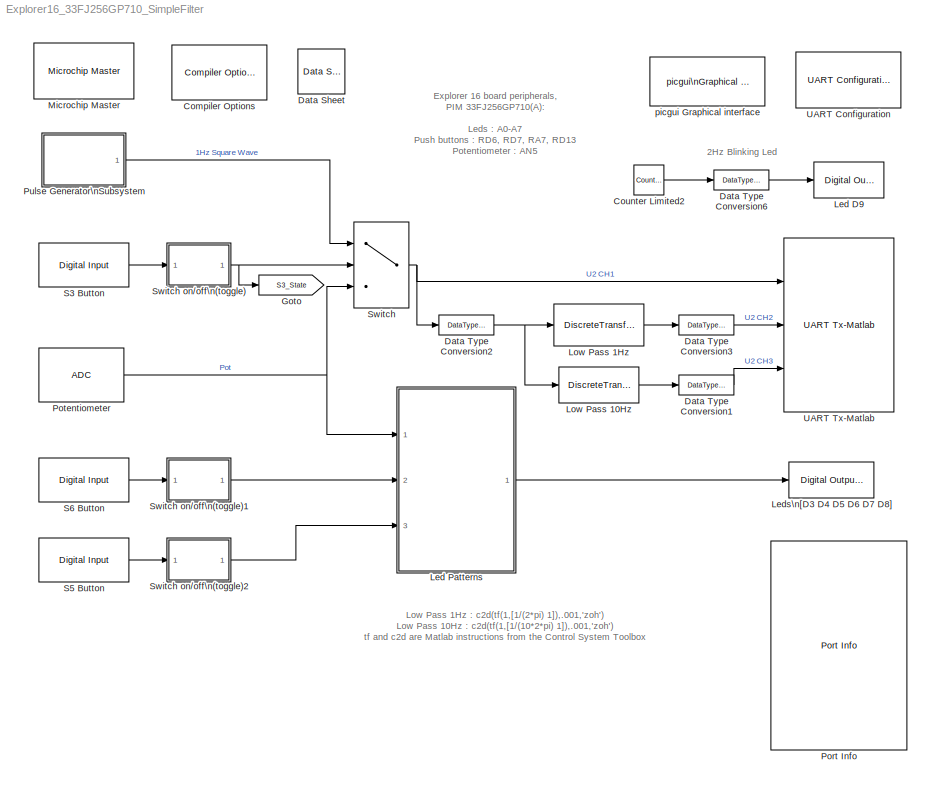
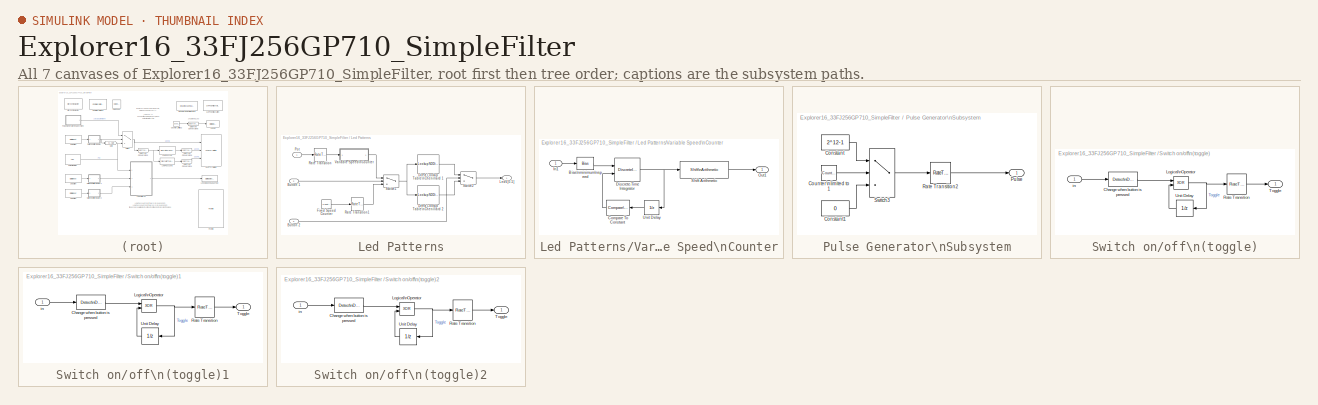
[diagram: thumbnail index - all 7 canvases of the model, root first then tree order]
MODEL Explorer16_33FJ256GP710_SimpleFilter
KIND model
BLOCK [Reference] Compiler Options  REF=MCHP_Blockset/System Configuration/Compiler Options
  AssemblyListing = off
  COMP_LIST = Dynamic Options
  COMP_LIST_TXT = xc16 - v1.26
  DEBUG_INFO = off
  HEAP_SIZE = 0
  LATEST_CMPLR = on
  MCHP_MASTERLINK = Explorer16_33FJ256GP710_SimpleFilter/Microchip Master
  MCHP_MULTITHREAD_COMPILATION = on
  MCODE = is less than 32768 (faster)
  MCONST = in data memory
  MDATA = Use only memory below address 8192 (faster)
  MPLAB_LINKLIB = default
  MPLAB_LINKLIB1 = default
  MSCALAR = Use only memory below address 8192 (faster)
  OMF = elf
  OMIT_FRAME_POINTER = on
  OPTIMIZATION_LEVEL = 3
  PROCEDURAL_ABSTRACTION = on
  Ports = []
  Priority = 1
  ProduceHexOutput = on
  SID = 12
  SourceBlock = MCHP_Blockset/System Configuration/Compiler Options
  UNROLL_LOOPS = on
  USE_64BIT_DOUBLE = off
BLOCK [Reference] Counter Limited2  REF=simulink/Sources/Counter\nLimited
  FunctionWithSeparateData = off
  Ports = [0, 1]
  RTWMemSecDataConstants = Inherit from model
  RTWMemSecDataInternal = Inherit from model
  RTWMemSecDataParameters = Inherit from model
  RTWMemSecFuncExecute = Inherit from model
  RTWMemSecFuncInitTerm = Inherit from model
  SID = 37
  ShowPortLabels = FromPortIcon
  SourceBlock = simulink/Sources/Counter\nLimited
  SourceType = Counter Limited
  SystemSampleTime = -1
  tsamp = .25
  uplimit = 1
BLOCK [Reference] Data Sheet  REF=MCHP_Blockset/System Info/Data Sheet
  AttributesFormatString = %<cpy_MCHP_Id>
  DOC_FileLastCheckTime = [2013              1             31             16              0          0.865]
  DOC_FilePath = <userpath><path>
  DOC_MCHP_Id = 33FJ256GP710
  DOC_Type = datasheet
  MCHP_MASTERLINK = Explorer16_33FJ256GP710_SimpleFilter/Microchip Master
  Ports = []
  SID = 33
  SourceBlock = MCHP_Blockset/System Info/Data Sheet
  cpy_MCHP_Id = 33FJ256GP710A
BLOCK [DataTypeConversion] Data Type Conversion1
  OutDataTypeMode = uint16
  OutDataTypeStr = uint16
  RndMeth = Floor
  SID = 11
  SaturateOnIntegerOverflow = off
BLOCK [DataTypeConversion] Data Type Conversion2
  RndMeth = Floor
  SID = 9
  SaturateOnIntegerOverflow = off
BLOCK [DataTypeConversion] Data Type Conversion3
  OutDataTypeMode = uint16
  OutDataTypeStr = uint16
  RndMeth = Floor
  SID = 10
  SaturateOnIntegerOverflow = off
BLOCK [DataTypeConversion] Data Type Conversion6
  OutDataTypeMode = boolean
  OutDataTypeStr = boolean
  RndMeth = Floor
  SID = 38
  SaturateOnIntegerOverflow = off
BLOCK [Goto] Goto
  GotoTag = S3_State
  SID = 132
  TagVisibility = local
BLOCK [Reference] Led D9  REF=MCHP_Blockset/Digital IO/Digital Output
  FunctionWithSeparateData = off
  MCHP_MASTERLINK = Explorer16_33FJ256GP710_SimpleFilter/Microchip Master
  ORDERING = None
  PACK = off
  PIN = 6
  PORT = Dynamic Options
  PORT_TXT = A   [ 0  1  2  3  4  5  6  7  9  10  12  13  14  15 ]
  Ports = [1]
  READPREVIOUS = off
  RTWMemSecDataConstants = Inherit from model
  RTWMemSecDataInternal = Inherit from model
  RTWMemSecDataParameters = Inherit from model
  RTWMemSecFuncExecute = Inherit from model
  RTWMemSecFuncInitTerm = Inherit from model
  SID = 52
  SIMULTANEOUS = off
  SampleTime = -1
  ShowPortLabels = FromPortIcon
  SourceBlock = MCHP_Blockset/Digital IO/Digital Output
  SystemSampleTime = -1
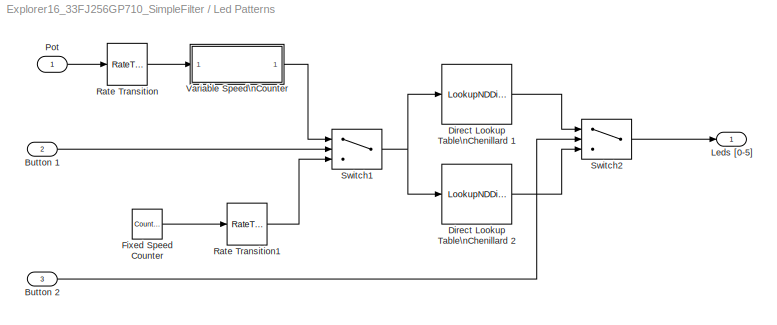
BLOCK [SubSystem] Led Patterns
  FunctionWithSeparateData = off
  MaskHideContents = off
  MinAlgLoopOccurrences = off
  Opaque = off
  Ports = [3, 1]
  PropExecContextOutsideSubsystem = off
  RTWSystemCode = Auto
  RequestExecContextInheritance = off
  SID = 126
BLOCK [Inport] Led Patterns/Button 1
  IconDisplay = Port number
  Port = 2
  SID = 128
BLOCK [Inport] Led Patterns/Button 2
  IconDisplay = Port number
  Port = 3
  SID = 129
BLOCK [LookupNDDirect] Led Patterns/Direct Lookup Table\nChenillard 1 
  NumberOfTableDimensions = 1
  Ports = [1, 1]
  SID = 54
  Table = [1 3 6 12 24 48 32 48 24 12 6 3 ]
  TableDataTypeStr = uint16
BLOCK [LookupNDDirect] Led Patterns/Direct Lookup Table\nChenillard 2
  NumberOfTableDimensions = 1
  Ports = [1, 1]
  SID = 82
  Table = [33  18 12 12 18 33 33  18 12 12 18 33]
  TableDataTypeStr = uint16
BLOCK [Reference] Led Patterns/Fixed Speed Counter  REF=simulink/Sources/Counter\nLimited
  FunctionWithSeparateData = off
  Ports = [0, 1]
  RTWMemSecDataConstants = Inherit from model
  RTWMemSecDataInternal = Inherit from model
  RTWMemSecDataParameters = Inherit from model
  RTWMemSecFuncExecute = Inherit from model
  RTWMemSecFuncInitTerm = Inherit from model
  SID = 35
  ShowPortLabels = FromPortIcon
  SourceBlock = simulink/Sources/Counter\nLimited
  SourceType = Counter Limited
  SystemSampleTime = -1
  tsamp = .1
  uplimit = 11
BLOCK [Outport] Led Patterns/Leds [0-5]
  IconDisplay = Port number
  SID = 130
BLOCK [Inport] Led Patterns/Pot
  IconDisplay = Port number
  SID = 127
BLOCK [RateTransition] Led Patterns/Rate Transition
  Deterministic = off
  Integrity = off
  OutPortSampleTime = .01
  SID = 67
BLOCK [RateTransition] Led Patterns/Rate Transition1
  Deterministic = off
  Integrity = off
  SID = 83
BLOCK [Switch] Led Patterns/Switch1
  Criteria = u2 ~= 0
  InputSameDT = off
  SID = 72
  SaturateOnIntegerOverflow = off
BLOCK [Switch] Led Patterns/Switch2
  Criteria = u2 ~= 0
  InputSameDT = off
  SID = 81
  SaturateOnIntegerOverflow = off
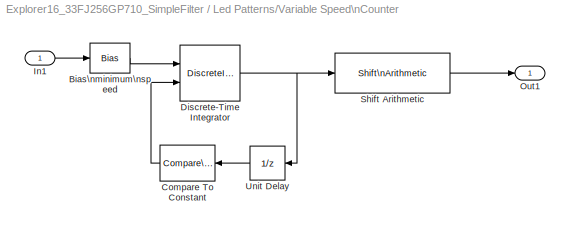
BLOCK [SubSystem] Led Patterns/Variable Speed\nCounter
  FunctionWithSeparateData = off
  MaskHideContents = off
  MinAlgLoopOccurrences = off
  Opaque = off
  Ports = [1, 1]
  PropExecContextOutsideSubsystem = off
  RTWSystemCode = Auto
  RequestExecContextInheritance = off
  SID = 69
BLOCK [Bias] Led Patterns/Variable Speed\nCounter/Bias\nminimum\nspeed
  Bias = 10
  SID = 68
  SaturateOnIntegerOverflow = off
BLOCK [Reference] Led Patterns/Variable Speed\nCounter/Compare To Constant  REF=simulink/Logic and Bit\nOperations/Compare\nTo Constant
  FunctionWithSeparateData = off
  LogicOutDataTypeMode = uint8
  Ports = [1, 1]
  RTWMemSecDataConstants = Inherit from model
  RTWMemSecDataInternal = Inherit from model
  RTWMemSecDataParameters = Inherit from model
  RTWMemSecFuncExecute = Inherit from model
  RTWMemSecFuncInitTerm = Inherit from model
  SID = 64
  ShowPortLabels = FromPortIcon
  SourceBlock = simulink/Logic and Bit\nOperations/Compare\nTo Constant
  SourceType = Compare To Constant
  SystemSampleTime = -1
  ZeroCross = on
  const = 12*2^12-1
  relop = >=
BLOCK [DiscreteIntegrator] Led Patterns/Variable Speed\nCounter/Discrete-Time Integrator
  ExternalReset = level
  ICPrevOutput = DiscIntNeverNeededParam
  ICPrevScaledInput = DiscIntNeverNeededParam
  InitialConditionSource = internal
  IntegratorMethod = Accumulation: Forward Euler
  OutDataTypeMode = uint16
  OutDataTypeStr = uint16
  Ports = [2, 1]
  SID = 63
  SampleTime = -1
  UpperSaturationLimit = 11*2^8
  gainval = 1
BLOCK [Inport] Led Patterns/Variable Speed\nCounter/In1
  IconDisplay = Port number
  SID = 70
BLOCK [Outport] Led Patterns/Variable Speed\nCounter/Out1
  IconDisplay = Port number
  SID = 71
BLOCK [Reference] Led Patterns/Variable Speed\nCounter/Shift Arithmetic  REF=simulink/Logic and Bit\nOperations/Shift\nArithmetic
  FunctionWithSeparateData = off
  Ports = [1, 1]
  RTWMemSecDataConstants = Inherit from model
  RTWMemSecDataInternal = Inherit from model
  RTWMemSecDataParameters = Inherit from model
  RTWMemSecFuncExecute = Inherit from model
  RTWMemSecFuncInitTerm = Inherit from model
  SID = 156
  ShowPortLabels = FromPortIcon
  SourceBlock = simulink/Logic and Bit\nOperations/Shift\nArithmetic
  SourceType = Shift Arithmetic
  SystemSampleTime = -1
  nBinPtShiftRight = 0
  nBitShiftRight = 12
BLOCK [UnitDelay] Led Patterns/Variable Speed\nCounter/Unit Delay
  SID = 66
  SampleTime = -1
BLOCK [Reference] Leds\n[D3 D4 D5 D6 D7 D8]  REF=MCHP_Blockset/Digital IO/Digital Output\nWrite
  MCHP_MASTERLINK = Explorer16_33FJ256GP710_SimpleFilter/Microchip Master
  MCHP_PORT = {Digital Out}{DOU}1:1:A0;{Digital Out}{DOU}1:1:A1;{Digital Out}{DOU}1:1:A2;{Digital Out}{DOU}1:1:A3;{Digital Out}{DOU}1:1:A4;{Digital Out}{DOU}1:1:A5;
  ORDERING = None
  PACK = on
  PIN = [0:5]
  PORT = Dynamic Options
  PORT_TXT = A   [ 0  1  2  3  4  5  6  7  9  10  12  13  14  15 ]
  Ports = [1]
  SID = 152
  SIMULTANEOUS = off
  SampleTime = -1
  SourceBlock = MCHP_Blockset/Digital IO/Digital Output\nWrite
  SourceType = Output driver for Digital Output Pins
BLOCK [DiscreteTransferFcn] Low Pass 10Hz
  Denominator = [1 -0.9391]
  Numerator = [0 0.0609]
  Ports = [1, 1]
  SID = 7
  SampleTime = -1
BLOCK [DiscreteTransferFcn] Low Pass 1Hz
  Denominator = [1 -.9937]
  Numerator = [0 0.006263]
  Ports = [1, 1]
  SID = 6
  SampleTime = -1
BLOCK [Reference] Microchip Master  REF=MCHP_Blockset/System Configuration/Microchip Master
  ACTIV_PLL = on
  ACTIV_PLL_spd = on
  AIVTDIS = Disable Alternate Vector Table
  ALTADREF = AVREF+/AVREF- are mapped to RA9/RA10
  ALTCMPI = C1INC is on RB13; C2INC is on RB9 and C3INC is on RA0
  ALTCVREF = CVREF+/CVREF- are mapped to RA9/RA10
  ALTI2C = I2C mapped to SDA1/SCL1 pins
  ALTI2C1 = I2C1 mapped to SDA1/SCL1 pins
  ALTI2C2 = I2C2 mapped to SDA2/SCL2 pins
  ALTPMP = EPMP pins are in default location mode
  ALTQIO = QEA1; QEB1; INDX1 are selected as inputs to QEI1
  ALTRB6 = Append the RP6/ASCL1/PMPD6 functions of RB6 to RA1 pin functions
  ALTSS1 = SS1A is selected as the I/O pin for SPI1
  ALTVREF = Voltage reference input; ADC =RA9/RA10 Comparator =RA9;RA10
  APL = Aux Flash Code protect is disabled
  APLK = Aux Flash Write Protection or Code Protection is Enabled
  ATMOD8 = Not used
  AWRP = Aux Flash may be written
  BACKBUG = Not used
  BKBUG = Device resets into Operational mode
  BODENV = 2.7V
  BOOTISA = Boot code and Exception code is MIPS32
  BOREN = Disable
  BOREN0 = Enabled
  BOREN1 = BOR Enabled [When BOREN=1]
  BORV = Brown-out Reset set at 2.0V
  BSEN = No Boot Segment
  BSLIM = Not used
  BSS = No boot program Flash segment
  BSS2 = No Boot Segment
  BTMODE = Device is in Single Boot (legacy) mode
  BTSWP = Not used
  BUSYFLAG = Dynamic Options
  BUSYFLAG_TXT = None
  BWP = Protection Disabled
  BWRP = Boot Segment may be written
  CMPPOL0 = Hysteresis is applied to falling edge
  CMPPOL1 = Hysteresis is applied to falling edge
  COE = Reset Into Operational Mode
  CP = Protection Disabled
  CSEQ = Not used
  CSS = No Protection (other than CWRP)
  CTXT1 = Not Assigned
  CTXT2 = Not Assigned
  CWRP = Configuration Segment may be written
  DBCC = Not used
  DBGPER = Allow CPU access to all permission regions
  DEBUG = Debugger is disabled
  DFMCY = Not used
  DISUVREG = Regulator is disabled
  DMTCNT = 2^31 (2147483648)
  DMTEN = Dead Man Timer is Enabled and cannot be disabled by software
  DMTINTV = Window/Interval value is 127/128 counter value
  DMTIVT = Not used
  DSBOREN = Deep Sleep BOR enabled in Deep Sleep
  DSLPBOR = Deep Sleep BOR enabled in Deep Sleep
  DSSWEN = Deep Sleep is controlled by the register bit DSEN
  DSWDTEN = DSWDT enabled
  DSWDTOSC = DSWDT uses Low Power RC Oscillator (LPRC)
  DSWDTPS = 1:2;147;483;648 (25.7 Days)
  EBS = No Boot EEPROM
  EJTAGBEN = Normal EJTAG functionality
  ESS = No Segment Data EEPROM
  EXTDDRSIZE = External DDR2 Size is 128 MB
  FCANIO = Default CAN I/O
  FCKSM = Clock switching is enabled; Fail-Safe Clock Monitor is disabled
  FCKSMEN = Sw Disabled; Mon Disabled
  FDMTEN = Deadman Timer is disabled
  FECCCON = ECC and Dynamic ECC are disabled (ECCCON bits are writable)
  FETHIO = Default Ethernet I/O
  FMIIEN = MII Enabled
  FNOSC = Primary oscillator (XT; HS; EC)
  FOS = Primary Oscillator
  FOSFPR = HS3 w/PLL 16x
  FPBDIV = Pb_Clk is Sys_Clk/8
  FPLLICLK = FRC is input to the System PLL
  FPLLIDIV = 12x Divider
  FPLLMUL = 24x Multiplier
  FPLLMULT = PLL Multiply by 128
  FPLLODIV = PLL Divide by 256
  FPLLRNG = 34-68 MHz Input
  FPR = ECIO w/ PLL 16x
  FPWRT = 128ms
  FRANGE = High Range
  FSLEEP = Flash is powered down when the device is in Sleep mode
  FSOSCEN = Enabled
  FSRSSEL = SRS Priority 7
  FUSBIDIO = Controlled by the USB Module
  FVBUSONIO = Controlled by USB Module
  FWDTEN = Disable
  FWDTWINSZ = Window size is 25%
  FWPSA = WDT prescaler ratio of 1:128
  FWPSA0 = 1:128
  FWPSB = 1:16
  GCP = General Segment Code protect is disabled
  GSS = User program memory is not code-protected
  GSS0 = No protection
  GSSK = General Segment Write Protection or Code Protection is Enabled
  GWRP = General Segment may be written
  HPOL = PWM module high side output pins have active-high output polarity
  HYST0 = 45 mV Hysteresis
  HYST1 = 45 mV Hysteresis
  I2C1SEL = Use Default SCL1/SDA1 Pins For I2C1
  I2C2SEL = I2C2 is multiplexed to SDA2/RA3 and SCL2/RA2
  ICESEL = Communicate on PGEC1/PGED1
  ICS = Communicate on PGEC1 and PGED1
  IESO = Start up with FRC; then switch
  IOL1WAY = Allow Only One Re-configuration
  JTAGEN = Disable
  LPCFG = Disabled - regardless of RETEN
  LPOL = PWM module low side output pins have active-high output polarity
  LPRCSEL = High Power; High Accuracy Mode
  LVRCFG = Low Voltage regulator is not available
  MCHPVAR = MCHP.fcy.periph=MCHP_Fun.Hex2num('[417343A400000001]');MCHP.fcy.MIPS=MCHP_Fun.Hex2num('[417343A400000001]');MCHP.PowerSave=0;MCHP.TimeStepFactor=MCHP_Fun.Hex2num('[3FF0000000000002]');MCHP.TimeStep_Timer=3;MCHP.NTIMERS=9;MCHP.id.name='33FJ256GP710A';MCHP.id.N=reshape([33 256 710],1,3);MCHP.id.L=reshape({ 'FJ','GP','A'},1,3);MCHP.id.Arch=3;MCHP.periph.PPS.reg_RPINRx=reshape(MCHP_Fun.Hex2num('[]'),0...<+5074ch>
  MCHP_CRC = 4296003
  MCHP_PLLRegisters = [67     99  16385     -1]
  MCHP_TIMER_REQUEST = {Time Step}{TS}0:2:3:1:[3  5]:20200;
  MCHP_TIMER_RESULT = [3 20198.999999999993 ]
  MCLRE = RA5 input pin disabled;MCLR pin enabled
  MIPS = 20.200000000000003 * 1e6
  MIPS_DESIRED = 20.2e6
  MIPS_DESIRED_spd = 20.2e6
  ON = Not used
  OSCILLATOR_SELECT = Crystal / Ceramic resonator
  OSCILLATOR_SELECT_spd = Crystal / Ceramic resonator
  OSCIOFCN = OSCO/CLKO/RA3 functions as CLKO (FOSC/2)
  OSCIOFNC = OSC2 pin has digital I/O function
  PGL1WAY = Allow only one reconfiguration
  PICREF = 33FJ256GP710A
  PLL96MHZ = 96 MHz PLL Startup is enabled automatically on start-up
  PLLDIV = PLL is disabled
  PLLKEN = Clock switch to PLL source will wait until the PLL lock signal is valid.
  PLLSS = PLL is fed by the Primary oscillator
  PLL_96MHZ = Enabled
  PMDL1WAY = Allow only one reconfiguration
  POSCBOOST = Boost the kick start of the oscillator
  POSCFREQ = Primary oscillator/external clock input frequency greater than 8MHz
  POSCGAIN = 2x gain setting
  POSCMD = XT Oscillator Mode
  POSCMOD = Primary Oscillator Disabled
  POWERSAVE = off
  PWMLOCK = PWM registers may be written without key sequence
  PWMPIN = PWM module pins controlled by PORT register at device Reset
  PWP = Disable
  PWRTEN = PWRT enabled
  Ports = []
  Priority = 1
  QUARTZ = 8e6
  QUARTZ_spd = 8e6
  RBS = No Boot RAM
  RES = Not used
  RES1 = Not used
  RES2 = Not used
  RESERVED1 = Not used
  RETCFG = Retention regulator is not available
  RSS = No Secure RAM
  RSTPRI = Device will obtain reset instruction from Primary flash
  RTCBAT = RTC operation is continued through VBAT
  RTCOSC = RTCC uses Secondary Oscillator (SOSC)
  SEQNUM = Not used
  SID = 1
  SMCLR = MCLR pin generates a normal system Reset
  SOSCBOOST = Boost the kick start of the oscillator
  SOSCGAIN = 2x gain setting
  SOSCSEL = Secondary oscillator configured for high-power operation
  SOSCSRC = Analog Mode for use with crystal
  SSS = No Secure Segment
  SWRP = Secure segment may be written
  SourceBlock = MCHP_Blockset/System Configuration/Microchip Master
  TEMP = Not used
  TIMESTEP_REF = Timer + ADC  ( 0.001s )
  TRCEN = Trace features in the CPU are enabled
  TSEQ = Not used
  UPLLEN = Disabled and bypassed
  UPLLFSEL = USB PLL input is 24 MHz
  UPLLIDIV = 12x Divider
  USERID = Not used
  VBTBOR = VBAT BOR enabled
  WDT = Disable
  WDTCLK = WDT uses LPRC
  WDTCMX = WDT clock source is determined by the WDTCLK Configuration bits
  WDTEN = Disable
  WDTPOST = 1:32768
  WDTPRE = 1:128
  WDTPS = 1:32768
  WDTSPGM = WDT stops during Flash programming
  WDTWIN = WDT Window is 25% of WDT period
  WINDIS = Watchdog Timer in Non-Window mode
  WPCFG = Disable
  WPDIS = Disable
  WPEND = Write Protect from WPFP to the last page of memory
  WPFP = Page 127 (0x1FC00)
  WUTSEL = Default regulator start-up time used
  WWDTEN = Non-Window mode
  nSEQNUM = Not used
BLOCK [Reference] Port Info  REF=MCHP_Blockset/System Info/Port Info
  MCHP_MASTERLINK = Explorer16_33FJ256GP710_SimpleFilter/Microchip Master
  Ports = []
  SID = 148
  SourceBlock = MCHP_Blockset/System Info/Port Info
BLOCK [Reference] Potentiometer  REF=MCHP_Blockset/Analog IO/ADC
  ADC_DMA_CHANNEL = use DMA Channel 0
  ADC_REF = 1
  ADC_TIMING = [9.7029702970297006e-006]
  ADxCSS = [5 ]
  FORM = 0000 dddd dddd dddd ==> Unsigned integer
  Info = Total Time for Sample & Conversion : 9.703e-006s including 0s (x 1) sample time.
  MCHP_MASTERLINK = Explorer16_33FJ256GP710_SimpleFilter/Microchip Master
  MCHP_PORT = {Analog Input 5}{AN5}15:2:B5;
  MUXA_CH0N = off
  MUXA_CH123 = Dynamic Options
  MUXA_CH123_TXT = AN0 : AN1 : AN2
  MUXB_CH0 = AN1
  MUXB_CH0N = on
  MUXB_CH123 = Dynamic Options
  MUXB_CH123_TXT = AN0 : AN1 : AN2
  Mode = 12 bits
  Ports = [0, 1]
  Priority = 5
  SID = 2
  SIMULTANEOUS = Simultaneously on all Channels
  SSRC_SSRCG = Dynamic Options
  SSRC_SSRCG_TXT = 0
  SampleTime = 0.001
  SequenceRepeat = 1
  SequenceTiming = are done as fast as possible at end of previous time step
  SourceBlock = MCHP_Blockset/Analog IO/ADC
  Trig_TimeStep = with each update of the ADC block output
  Update_BlockOutput = After all trig and conversion sequence
  nSAMPLECHANNELS = CH0 only
  nSAMPLECHANNELS_12bits = CH0 only
BLOCK [SubSystem] Pulse Generator\nSubsystem
  FunctionWithSeparateData = off
  MaskHideContents = off
  MinAlgLoopOccurrences = off
  Opaque = off
  Ports = [0, 1]
  PropExecContextOutsideSubsystem = off
  RTWSystemCode = Auto
  RequestExecContextInheritance = off
  SID = 89
BLOCK [Constant] Pulse Generator\nSubsystem/Constant
  OutDataTypeMode = Inherit via back propagation
  OutDataTypeStr = Inherit: Inherit via back propagation
  SID = 86
  Value = 2^12-1
BLOCK [Constant] Pulse Generator\nSubsystem/Constant1
  OutDataTypeMode = Inherit via back propagation
  OutDataTypeStr = Inherit: Inherit via back propagation
  SID = 87
  Value = 0
BLOCK [Reference] Pulse Generator\nSubsystem/Counter\nlimited to 1  REF=simulink/Sources/Counter\nLimited
  FunctionWithSeparateData = off
  Ports = [0, 1]
  RTWMemSecDataConstants = Inherit from model
  RTWMemSecDataInternal = Inherit from model
  RTWMemSecDataParameters = Inherit from model
  RTWMemSecFuncExecute = Inherit from model
  RTWMemSecFuncInitTerm = Inherit from model
  SID = 84
  ShowPortLabels = FromPortIcon
  SourceBlock = simulink/Sources/Counter\nLimited
  SourceType = Counter Limited
  SystemSampleTime = -1
  tsamp = .5
  uplimit = 1
BLOCK [Outport] Pulse Generator\nSubsystem/Pulse
  IconDisplay = Port number
  SID = 90
BLOCK [RateTransition] Pulse Generator\nSubsystem/Rate Transition2
  Deterministic = off
  Integrity = off
  SID = 88
BLOCK [Switch] Pulse Generator\nSubsystem/Switch3
  Criteria = u2 ~= 0
  InputSameDT = off
  SID = 85
  SaturateOnIntegerOverflow = off
BLOCK [Reference] S3 Button  REF=MCHP_Blockset/Digital IO/Digital Input
  MCHP_MASTERLINK = Explorer16_33FJ256GP710_SimpleFilter/Microchip Master
  MCHP_PORT = {Digital In}{DIN}2:0:D6;
  ORDERING = None
  PACK = off
  PIN = 6
  PORT = Dynamic Options
  PORT_TXT = D   [ 0 : 15 ]
  Ports = [0, 1]
  SID = 41
  SIMULTANEOUS = off
  SampleTime = .01
  SourceBlock = MCHP_Blockset/Digital IO/Digital Input
  SourceType = Input driver for Digital Input Pins
BLOCK [Reference] S5 Button  REF=MCHP_Blockset/Digital IO/Digital Input
  MCHP_MASTERLINK = Explorer16_33FJ256GP710_SimpleFilter/Microchip Master
  MCHP_PORT = {Digital In}{DIN}2:0:A7;
  ORDERING = None
  PACK = off
  PIN = 7
  PORT = Dynamic Options
  PORT_TXT = A   [ 0  1  2  3  4  5  6  7  9  10  12  13  14  15 ]
  Ports = [0, 1]
  SID = 73
  SIMULTANEOUS = off
  SampleTime = .01
  SourceBlock = MCHP_Blockset/Digital IO/Digital Input
  SourceType = Input driver for Digital Input Pins
BLOCK [Reference] S6 Button  REF=MCHP_Blockset/Digital IO/Digital Input
  MCHP_MASTERLINK = Explorer16_33FJ256GP710_SimpleFilter/Microchip Master
  MCHP_PORT = {Digital In}{DIN}2:0:D7;
  ORDERING = None
  PACK = off
  PIN = 7
  PORT = Dynamic Options
  PORT_TXT = D   [ 0 : 15 ]
  Ports = [0, 1]
  SID = 55
  SIMULTANEOUS = off
  SampleTime = .01
  SourceBlock = MCHP_Blockset/Digital IO/Digital Input
  SourceType = Input driver for Digital Input Pins
BLOCK [Switch] Switch
  Criteria = u2 ~= 0
  InputSameDT = off
  SID = 48
  SaturateOnIntegerOverflow = off
BLOCK [SubSystem] Switch on//off\n(toggle)
  FunctionWithSeparateData = off
  MaskHideContents = off
  MinAlgLoopOccurrences = off
  Opaque = off
  Ports = [1, 1]
  PropExecContextOutsideSubsystem = off
  RTWSystemCode = Auto
  RequestExecContextInheritance = off
  SID = 45
BLOCK [Reference] Switch on//off\n(toggle)/Change when button is pressed  REF=simulink/Logic and Bit\nOperations/Detect\nDecrease
  FunctionWithSeparateData = off
  Ports = [1, 1]
  RTWMemSecDataConstants = Inherit from model
  RTWMemSecDataInternal = Inherit from model
  RTWMemSecDataParameters = Inherit from model
  RTWMemSecFuncExecute = Inherit from model
  RTWMemSecFuncInitTerm = Inherit from model
  SID = 40
  ShowPortLabels = FromPortIcon
  SourceBlock = simulink/Logic and Bit\nOperations/Detect\nDecrease
  SourceType = Detect Decrease
  SystemSampleTime = -1
  vinit = 0.0
BLOCK [Logic] Switch on//off\n(toggle)/Logical\nOperator
  AllPortsSameDT = off
  Operator = XOR
  OutDataTypeMode = boolean
  OutDataTypeStr = boolean
  Ports = [2, 1]
  SID = 43
BLOCK [RateTransition] Switch on//off\n(toggle)/Rate Transition
  Deterministic = off
  Integrity = off
  SID = 44
BLOCK [Outport] Switch on//off\n(toggle)/Toggle
  IconDisplay = Port number
  SID = 47
BLOCK [UnitDelay] Switch on//off\n(toggle)/Unit Delay
  SID = 149
  SampleTime = -1
BLOCK [Inport] Switch on//off\n(toggle)/in
  IconDisplay = Port number
  SID = 46
BLOCK [SubSystem] Switch on//off\n(toggle)1
  FunctionWithSeparateData = off
  MaskHideContents = off
  MinAlgLoopOccurrences = off
  Opaque = off
  Ports = [1, 1]
  PropExecContextOutsideSubsystem = off
  RTWSystemCode = Auto
  RequestExecContextInheritance = off
  SID = 134
BLOCK [Reference] Switch on//off\n(toggle)1/Change when button is pressed  REF=simulink/Logic and Bit\nOperations/Detect\nDecrease
  FunctionWithSeparateData = off
  Ports = [1, 1]
  RTWMemSecDataConstants = Inherit from model
  RTWMemSecDataInternal = Inherit from model
  RTWMemSecDataParameters = Inherit from model
  RTWMemSecFuncExecute = Inherit from model
  RTWMemSecFuncInitTerm = Inherit from model
  SID = 136
  ShowPortLabels = FromPortIcon
  SourceBlock = simulink/Logic and Bit\nOperations/Detect\nDecrease
  SourceType = Detect Decrease
  SystemSampleTime = -1
  vinit = 0.0
BLOCK [Logic] Switch on//off\n(toggle)1/Logical\nOperator
  AllPortsSameDT = off
  Operator = XOR
  OutDataTypeMode = boolean
  OutDataTypeStr = boolean
  Ports = [2, 1]
  SID = 138
BLOCK [RateTransition] Switch on//off\n(toggle)1/Rate Transition
  Deterministic = off
  Integrity = off
  SID = 139
BLOCK [Outport] Switch on//off\n(toggle)1/Toggle
  IconDisplay = Port number
  SID = 140
BLOCK [UnitDelay] Switch on//off\n(toggle)1/Unit Delay
  SID = 150
  SampleTime = -1
BLOCK [Inport] Switch on//off\n(toggle)1/in
  IconDisplay = Port number
  SID = 135
BLOCK [SubSystem] Switch on//off\n(toggle)2
  FunctionWithSeparateData = off
  MaskHideContents = off
  MinAlgLoopOccurrences = off
  Opaque = off
  Ports = [1, 1]
  PropExecContextOutsideSubsystem = off
  RTWSystemCode = Auto
  RequestExecContextInheritance = off
  SID = 141
BLOCK [Reference] Switch on//off\n(toggle)2/Change when button is pressed  REF=simulink/Logic and Bit\nOperations/Detect\nDecrease
  FunctionWithSeparateData = off
  Ports = [1, 1]
  RTWMemSecDataConstants = Inherit from model
  RTWMemSecDataInternal = Inherit from model
  RTWMemSecDataParameters = Inherit from model
  RTWMemSecFuncExecute = Inherit from model
  RTWMemSecFuncInitTerm = Inherit from model
  SID = 143
  ShowPortLabels = FromPortIcon
  SourceBlock = simulink/Logic and Bit\nOperations/Detect\nDecrease
  SourceType = Detect Decrease
  SystemSampleTime = -1
  vinit = 0.0
BLOCK [Logic] Switch on//off\n(toggle)2/Logical\nOperator
  AllPortsSameDT = off
  Operator = XOR
  OutDataTypeMode = boolean
  OutDataTypeStr = boolean
  Ports = [2, 1]
  SID = 145
BLOCK [RateTransition] Switch on//off\n(toggle)2/Rate Transition
  Deterministic = off
  Integrity = off
  SID = 146
BLOCK [Outport] Switch on//off\n(toggle)2/Toggle
  IconDisplay = Port number
  SID = 147
BLOCK [UnitDelay] Switch on//off\n(toggle)2/Unit Delay
  SID = 151
  SampleTime = -1
BLOCK [Inport] Switch on//off\n(toggle)2/in
  IconDisplay = Port number
  SID = 142
BLOCK [Reference] UART Configuration  REF=MCHP_Blockset/BUS UART/UART Configuration
  ALT_IO = on
  BAUD_Choice = Dynamic Options
  BAUD_Choice_IR = Dynamic Options
  BAUD_Choice_IR_InitSeq = Dynamic Options
  BAUD_Choice_IR_InitSeq_TXT = 0
  BAUD_Choice_IR_TXT = []
  BAUD_Choice_InitSeq = Dynamic Options
  BAUD_Choice_InitSeq_TXT = 0
  BAUD_Choice_TXT = 115200         [-0.37%]
  BAUD_Custom = 115200
  BAUD_Custom_InitSeq = 0
  FlowControl = None
  IRDA = off
  InitSequence = 'Hello World'
  InitSequence_chkbox = off
  MCHP_COM_ExtPil = off
  MCHP_MASTERLINK = Explorer16_33FJ256GP710_SimpleFilter/Microchip Master
  MCHP_PORT = {UART2  Rx}{U2RX}3:0:F4;{UART2  Tx}{U2TX}3:1:F5;
  PIN_CTS = Dynamic Options
  PIN_CTS_TXT = Dynamic Options
  PIN_RTS = Dynamic Options
  PIN_RTS_TXT = Dynamic Options
  PIN_RX = Dynamic Options
  PIN_RX_TXT = Dynamic Options
  PIN_TX = Dynamic Options
  PIN_TX_TXT = Dynamic Options
  Ports = []
  RX_CIRCULAR_SIZE = 32
  RX_IMPLEMENTATION = Circular Buffer
  RX_INT_PRIORITY = 1
  RX_INT_WHEN = receive 1 character
  SID = 3
  SourceBlock = MCHP_Blockset/BUS UART/UART Configuration
  SourceType = Configuration for UART peripheral
  TX_CIRCULAR_SIZE = 32
  TX_DMA_CHANNEL = 1
  TX_DMA_SIZE = 18
  TX_IMPLEMENTATION = DMA Ping-Pong Mode
  TX_INT_PRIORITY = 1
  TX_INT_WHEN = is empty
  UART_REF = 2
BLOCK [Reference] UART Tx-Matlab  REF=MCHP_Blockset/BUS UART/UART Tx-Matlab
  AllOrNothing = off
  CHANNELS = [1  2 3]
  MCHP_COMPILED_INFO = CompiledSampleTime= [0.001   0 ];CompiledInportDataTypes=[  5   5   5 ];CompiledInportDataWidth=[1  1  1];
  MCHP_MASTERLINK = Explorer16_33FJ256GP710_SimpleFilter/Microchip Master
  Ports = [3]
  SID = 4
  SampleTime = -1
  SourceBlock = MCHP_Blockset/BUS UART/UART Tx-Matlab
  SourceType = Higl Level UART protocol
  UART_REF = 2
BLOCK [Reference] picgui Graphical interface  REF=MCHP_Blockset/BUS UART/picgui\nGraphical interface
  Nothing = 0
  Ports = []
  SID = 5
  SourceBlock = MCHP_Blockset/BUS UART/picgui\nGraphical interface
ANNOTATION (root): 2Hz Blinking Led
ANNOTATION (root): Explorer 16 board peripherals,\nPIM 33FJ256GP710(A): \n\nLeds : A0-A7\nPush buttons : RD6, RD7, RA7, RD13\nPotentiometer : AN5
ANNOTATION (root): Low Pass 1Hz : c2d(tf(1,[1/(2*pi) 1]),.001,'zoh')\nLow Pass 10Hz : c2d(tf(1,[1/(10*2*pi) 1]),.001,'zoh')\ntf and c2d are Matlab instructions from the Control System Toolbox
LINE Counter Limited2:1 -> Data Type Conversion6:1
LINE Data Type Conversion1:1 -> UART Tx-Matlab:3
NET Data Type Conversion2:1 -> Low Pass 10Hz:1, Low Pass 1Hz:1
LINE Data Type Conversion3:1 -> UART Tx-Matlab:2
LINE Data Type Conversion6:1 -> Led D9:1
LINE Led Patterns/Button 1:1 -> Led Patterns/Switch1:2
LINE Led Patterns/Button 2:1 -> Led Patterns/Switch2:2
LINE Led Patterns/Direct Lookup Table\nChenillard 1 :1 -> Led Patterns/Switch2:1
LINE Led Patterns/Direct Lookup Table\nChenillard 2:1 -> Led Patterns/Switch2:3
LINE Led Patterns/Fixed Speed Counter:1 -> Led Patterns/Rate Transition1:1
LINE Led Patterns/Pot:1 -> Led Patterns/Rate Transition:1
LINE Led Patterns/Rate Transition1:1 -> Led Patterns/Switch1:3
LINE Led Patterns/Rate Transition:1 -> Led Patterns/Variable Speed\nCounter:1
NET Led Patterns/Switch1:1 -> Led Patterns/Direct Lookup Table\nChenillard 1 :1, Led Patterns/Direct Lookup Table\nChenillard 2:1
LINE Led Patterns/Switch2:1 -> Led Patterns/Leds [0-5]:1
LINE Led Patterns/Variable Speed\nCounter/Bias\nminimum\nspeed:1 -> Led Patterns/Variable Speed\nCounter/Discrete-Time Integrator:1
LINE Led Patterns/Variable Speed\nCounter/Compare To Constant:1 -> Led Patterns/Variable Speed\nCounter/Discrete-Time Integrator:2
NET Led Patterns/Variable Speed\nCounter/Discrete-Time Integrator:1 -> Led Patterns/Variable Speed\nCounter/Shift Arithmetic:1, Led Patterns/Variable Speed\nCounter/Unit Delay:1
LINE Led Patterns/Variable Speed\nCounter/In1:1 -> Led Patterns/Variable Speed\nCounter/Bias\nminimum\nspeed:1
LINE Led Patterns/Variable Speed\nCounter/Shift Arithmetic:1 -> Led Patterns/Variable Speed\nCounter/Out1:1
LINE Led Patterns/Variable Speed\nCounter/Unit Delay:1 -> Led Patterns/Variable Speed\nCounter/Compare To Constant:1
LINE Led Patterns/Variable Speed\nCounter:1 -> Led Patterns/Switch1:1
LINE Led Patterns:1 -> Leds\n[D3 D4 D5 D6 D7 D8]:1
LINE Low Pass 10Hz:1 -> Data Type Conversion1:1
LINE Low Pass 1Hz:1 -> Data Type Conversion3:1
NET Potentiometer:1 -> Led Patterns:1, Switch:3
LINE Pulse Generator\nSubsystem/Constant1:1 -> Pulse Generator\nSubsystem/Switch3:3
LINE Pulse Generator\nSubsystem/Constant:1 -> Pulse Generator\nSubsystem/Switch3:1
LINE Pulse Generator\nSubsystem/Counter\nlimited to 1:1 -> Pulse Generator\nSubsystem/Switch3:2
LINE Pulse Generator\nSubsystem/Rate Transition2:1 -> Pulse Generator\nSubsystem/Pulse:1
LINE Pulse Generator\nSubsystem/Switch3:1 -> Pulse Generator\nSubsystem/Rate Transition2:1
LINE Pulse Generator\nSubsystem:1 -> Switch:1
LINE S3 Button:1 -> Switch on//off\n(toggle):1
LINE S5 Button:1 -> Switch on//off\n(toggle)2:1
LINE S6 Button:1 -> Switch on//off\n(toggle)1:1
LINE Switch on//off\n(toggle)/Change when button is pressed:1 -> Switch on//off\n(toggle)/Logical\nOperator:1
NET Switch on//off\n(toggle)/Logical\nOperator:1 -> Switch on//off\n(toggle)/Rate Transition:1, Switch on//off\n(toggle)/Unit Delay:1
LINE Switch on//off\n(toggle)/Rate Transition:1 -> Switch on//off\n(toggle)/Toggle:1
LINE Switch on//off\n(toggle)/Unit Delay:1 -> Switch on//off\n(toggle)/Logical\nOperator:2
LINE Switch on//off\n(toggle)/in:1 -> Switch on//off\n(toggle)/Change when button is pressed:1
LINE Switch on//off\n(toggle)1/Change when button is pressed:1 -> Switch on//off\n(toggle)1/Logical\nOperator:1
NET Switch on//off\n(toggle)1/Logical\nOperator:1 -> Switch on//off\n(toggle)1/Rate Transition:1, Switch on//off\n(toggle)1/Unit Delay:1
LINE Switch on//off\n(toggle)1/Rate Transition:1 -> Switch on//off\n(toggle)1/Toggle:1
LINE Switch on//off\n(toggle)1/Unit Delay:1 -> Switch on//off\n(toggle)1/Logical\nOperator:2
LINE Switch on//off\n(toggle)1/in:1 -> Switch on//off\n(toggle)1/Change when button is pressed:1
LINE Switch on//off\n(toggle)1:1 -> Led Patterns:2
LINE Switch on//off\n(toggle)2/Change when button is pressed:1 -> Switch on//off\n(toggle)2/Logical\nOperator:1
NET Switch on//off\n(toggle)2/Logical\nOperator:1 -> Switch on//off\n(toggle)2/Rate Transition:1, Switch on//off\n(toggle)2/Unit Delay:1
LINE Switch on//off\n(toggle)2/Rate Transition:1 -> Switch on//off\n(toggle)2/Toggle:1
LINE Switch on//off\n(toggle)2/Unit Delay:1 -> Switch on//off\n(toggle)2/Logical\nOperator:2
LINE Switch on//off\n(toggle)2/in:1 -> Switch on//off\n(toggle)2/Change when button is pressed:1
LINE Switch on//off\n(toggle)2:1 -> Led Patterns:3
NET Switch on//off\n(toggle):1 -> Goto:1, Switch:2
NET Switch:1 -> Data Type Conversion2:1, UART Tx-Matlab:1
note: NET lines group one-source signal fan-out (src -> all destinations, sorted); 1:1 wires keep LINE
note: 1 file-system path scrubbed to <path> (not preserved elsewhere — flat text is the only slx artifact)
